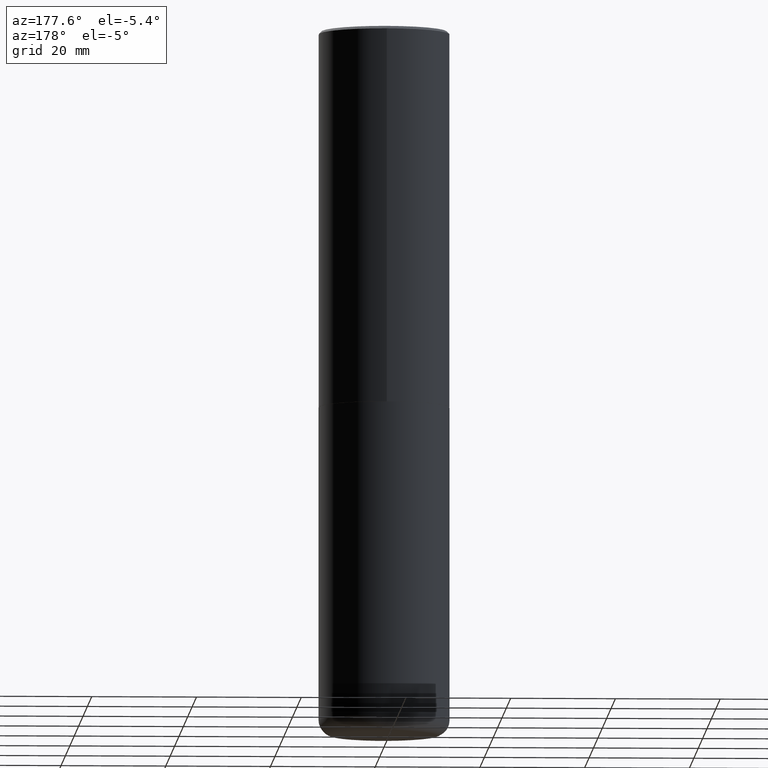
[diagram: clean part render]
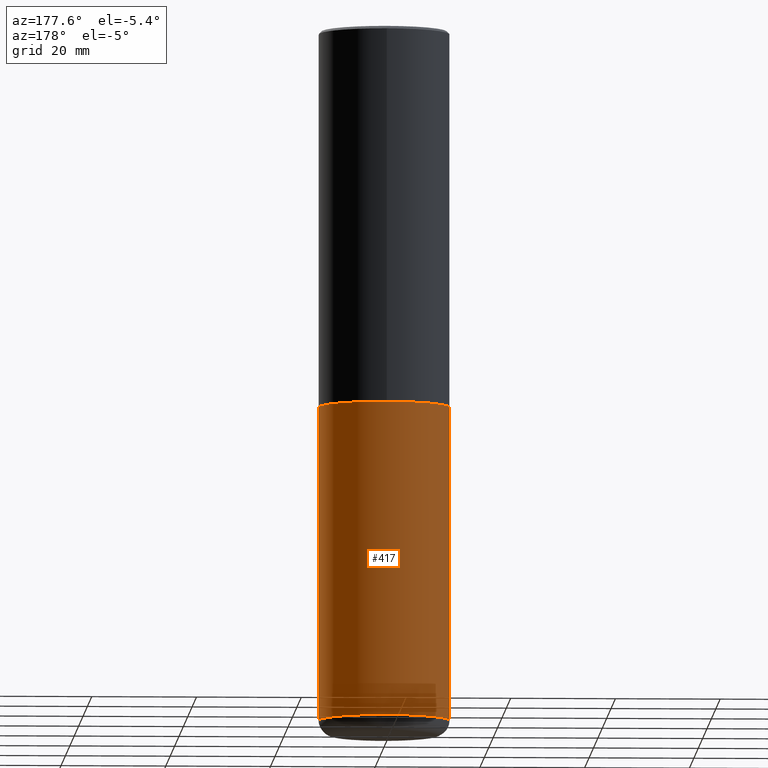
[diagram: same view with one face highlighted and labeled with its STEP entity id]
A machine part, auxiliary view. The second image highlights one B-rep face of the part: STEP entity #417.
In plain terms, the highlighted cylindrical surface (partial cylindrical patch) has radius 12.5006 mm, axis along (-0, 0, 1).
Its self-contained STEP definition (entity closure, byte-faithful):
#34 = VERTEX_POINT ( 'NONE', #179 ) ;
#36 = DIRECTION ( 'NONE',  ( -2.445468806185136597E-29, 3.491481338843145583E-15, 1.000000000000000000 ) ) ;
#55 = EDGE_LOOP ( 'NONE', ( #295, #232, #196, #102 ) ) ;
#65 = VERTEX_POINT ( 'NONE', #374 ) ;
#78 = CARTESIAN_POINT ( 'NONE',  ( 0.4921499999999999764, -2.158154445165724138E-14, -5.196900000000000297 ) ) ;
#80 = CARTESIAN_POINT ( 'NONE',  ( -0.4921499999999999764, 3.496936074043332897E-15, -2.420853904668951509E-29 ) ) ;
#90 = AXIS2_PLACEMENT_3D ( 'NONE', #185, #147, #375 ) ;
#102 = ORIENTED_EDGE ( 'NONE', *, *, #380, .F. ) ;
#130 = DIRECTION ( 'NONE',  ( 1.000000000000000000, -6.982962677686265922E-15, 0.000000000000000000 ) ) ;
#135 = LINE ( 'NONE', #273, #282 ) ;
#136 = CARTESIAN_POINT ( 'NONE',  ( -0.4921499999999999764, -1.464794329579061349E-14, -5.196900000000000297 ) ) ;
#144 = AXIS2_PLACEMENT_3D ( 'NONE', #402, #157, #197 ) ;
#147 = DIRECTION ( 'NONE',  ( -2.445468806185136597E-29, 3.491481338843145583E-15, 1.000000000000000000 ) ) ;
#157 = DIRECTION ( 'NONE',  ( -2.445468806185136597E-29, 3.491481338843145583E-15, 1.000000000000000000 ) ) ;
#165 = DIRECTION ( 'NONE',  ( -2.445468806185136877E-29, 3.491481338843145188E-15, 1.000000000000000000 ) ) ;
#179 = CARTESIAN_POINT ( 'NONE',  ( -0.4921499999999999764, -1.052415468648297289E-14, -2.834700000000000220 ) ) ;
#185 = CARTESIAN_POINT ( 'NONE',  ( 6.932170424893007423E-29, -9.897302151218665974E-15, -2.834700000000000220 ) ) ;
#191 = CARTESIAN_POINT ( 'NONE',  ( 1.270885683886353718E-28, -1.814487936983394718E-14, -5.196900000000000297 ) ) ;
#196 = ORIENTED_EDGE ( 'NONE', *, *, #257, .F. ) ;
#197 = DIRECTION ( 'NONE',  ( 1.000000000000000000, -6.982962677686265922E-15, 4.876176775795935793E-29 ) ) ;
#231 = CYLINDRICAL_SURFACE ( 'NONE', #144, 0.4921499999999999764 ) ;
#232 = ORIENTED_EDGE ( 'NONE', *, *, #234, .T. ) ;
#234 = EDGE_CURVE ( 'NONE', #292, #34, #320, .T. ) ;
#257 = EDGE_CURVE ( 'NONE', #65, #34, #350, .T. ) ;
#260 = AXIS2_PLACEMENT_3D ( 'NONE', #191, #36, #130 ) ;
#272 = FACE_OUTER_BOUND ( 'NONE', #55, .T. ) ;
#273 = CARTESIAN_POINT ( 'NONE',  ( 0.4921499999999999764, -3.436665081823295777E-15, 2.399810400207969603E-29 ) ) ;
#282 = VECTOR ( 'NONE', #165, 39.37007874015748143 ) ;
#292 = VERTEX_POINT ( 'NONE', #136 ) ;
#295 = ORIENTED_EDGE ( 'NONE', *, *, #408, .T. ) ;
#306 = VECTOR ( 'NONE', #314, 39.37007874015748143 ) ;
#314 = DIRECTION ( 'NONE',  ( -2.445468806185136877E-29, 3.491481338843145188E-15, 1.000000000000000000 ) ) ;
#320 = LINE ( 'NONE', #80, #306 ) ;
#327 = VERTEX_POINT ( 'NONE', #78 ) ;
#350 = CIRCLE ( 'NONE', #90, 0.4921499999999999764 ) ;
#374 = CARTESIAN_POINT ( 'NONE',  ( 0.4921499999999999764, -1.333396723304196175E-14, -2.834700000000000220 ) ) ;
#375 = DIRECTION ( 'NONE',  ( 1.000000000000000000, -6.982962677686265922E-15, 0.000000000000000000 ) ) ;
#380 = EDGE_CURVE ( 'NONE', #327, #65, #135, .T. ) ;
#402 = CARTESIAN_POINT ( 'NONE',  ( 0.000000000000000000, 0.000000000000000000, 0.000000000000000000 ) ) ;
#408 = EDGE_CURVE ( 'NONE', #327, #292, #410, .T. ) ;
#410 = CIRCLE ( 'NONE', #260, 0.4921499999999999764 ) ;
#417 = ADVANCED_FACE ( 'NONE', ( #272 ), #231, .T. ) ;